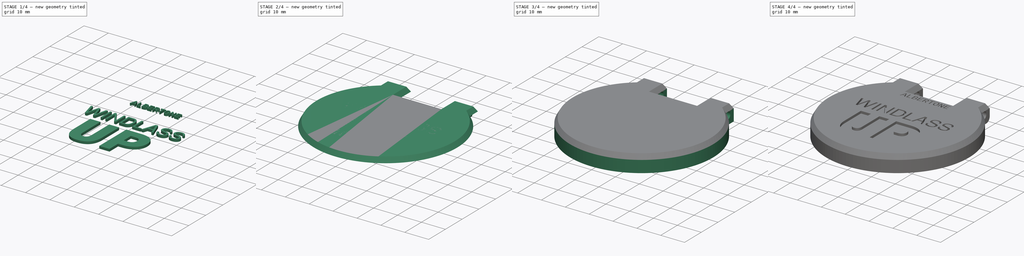
[diagram: build sequence overview — one tinted view per stage of 4, left to right]
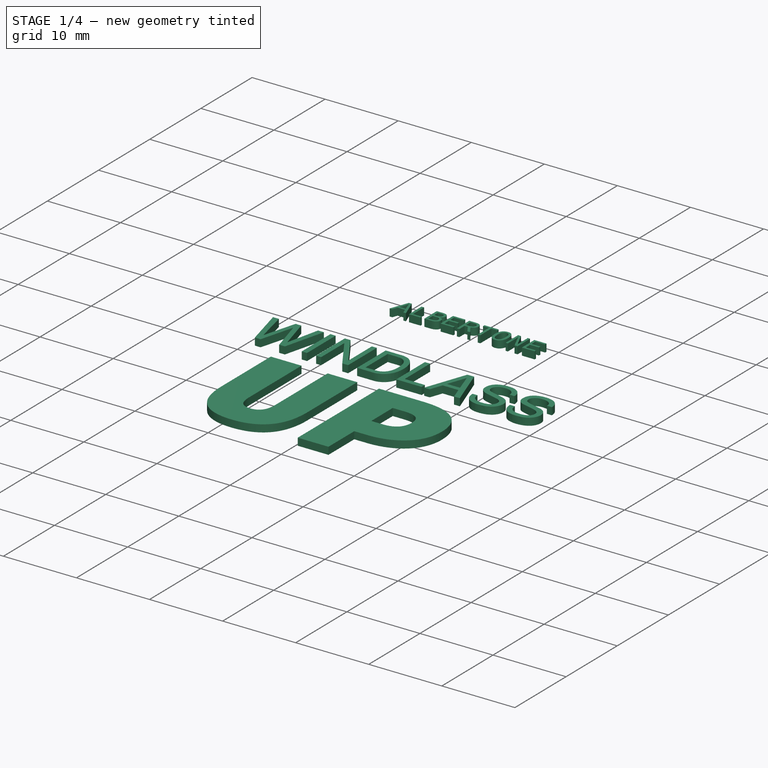
[diagram: stage 1 of 4 — iso view after this stage's code; geometry added in this stage tinted green]
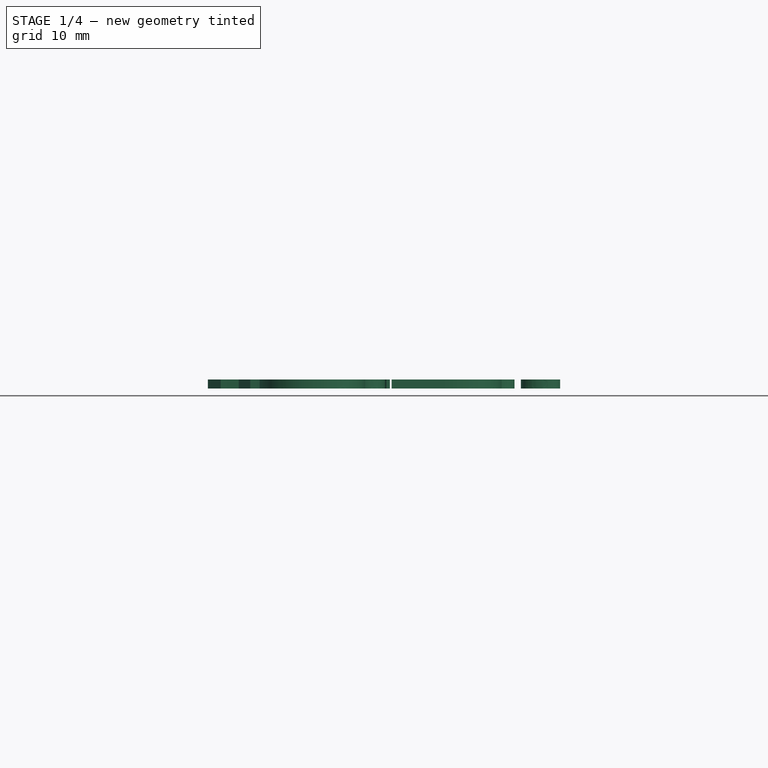
[diagram: stage 1 of 4 — front view after this stage's code; geometry added in this stage tinted green]
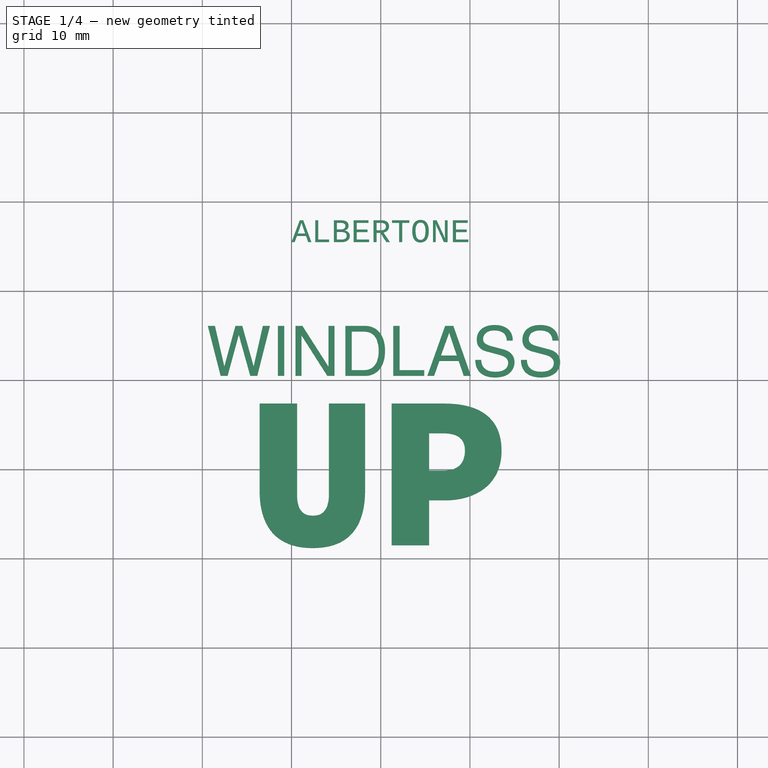
[diagram: stage 1 of 4 — top view after this stage's code; geometry added in this stage tinted green]
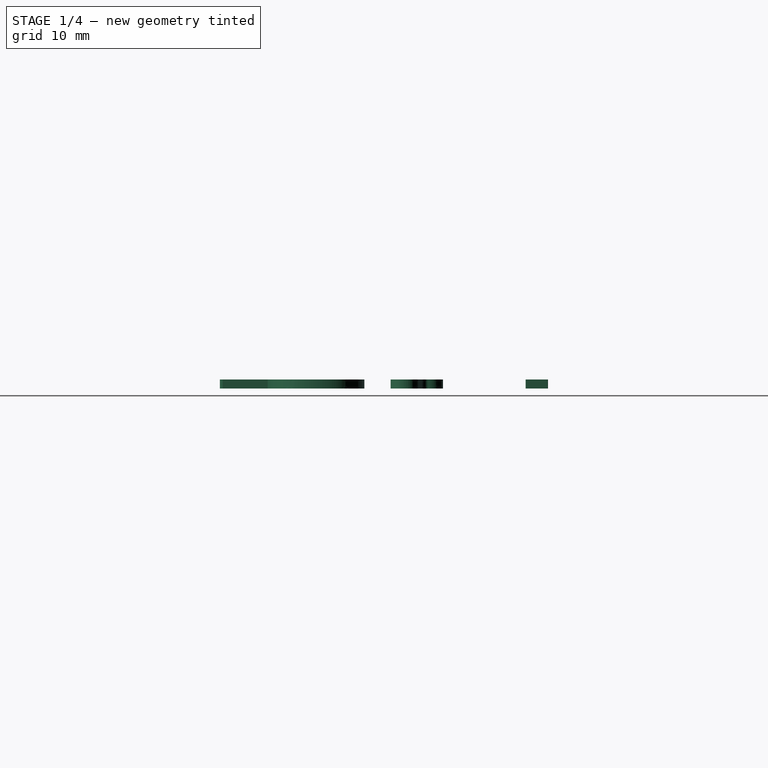
[diagram: stage 1 of 4 — right view after this stage's code; geometry added in this stage tinted green]
FCSTD DOCUMENT  (FreeCAD 0.21R33771 (Git))
Label: deck_switch_cover
License: All rights reserved
LicenseURL: https://en.wikipedia.org/wiki/All_rights_reserved
objects: Sketcher::SketchObject×5, Part::Part2DObjectPython×4, Part::Extrusion×4, PartDesign::Pad×2, PartDesign::Pocket×2, Image::ImagePlane×1, PartDesign::Fillet×1, PartDesign::Body×1, Part::MultiFuse×1, Part::Cut×1
note: 26 computed .brp shape members not serialized (recipe doc carries the construction recipe); baked Part::Feature solids carry a one-line shape summary decoded from their .brp

FEATURE [Part::Part2DObjectPython] ShapeString003  label="alertone"  # Draft 2D object (typed FeaturePython)
  FontFile = <path>
  MakeFace = true
  Placement = pos=(-10,15.5,2) rot=(0,0,1;0rad)
  Size = 2.8
  String = ALBERTONE
  Tracking = 0
FEATURE [Part::Extrusion] Extrude  label="Extrude_Windlass"
  Base = -> ShapeString
  Dir = (0,0,1)
  DirMode = 2
  FaceMakerClass = Part::FaceMakerBullseye
  LengthFwd = 1
  LengthRev = 0
  Reversed = true
  Solid = true
  Symmetric = false
FEATURE [Part::Extrusion] Extrude003  label="Extrude_UP"
  Base = -> ShapeString001
  Dir = (0,0,1)
  DirMode = 2
  FaceMakerClass = Part::FaceMakerBullseye
  LengthFwd = 1
  LengthRev = 0
  Reversed = true
  Solid = true
  Symmetric = false
FEATURE [Part::Extrusion] Extrude004  label="Extrude_Albertone"
  Base = -> ShapeString003
  Dir = (0,0,1)
  DirMode = 2
  FaceMakerClass = Part::FaceMakerBullseye
  LengthFwd = 1
  LengthRev = 0
  Reversed = true
  Solid = true
  Symmetric = false
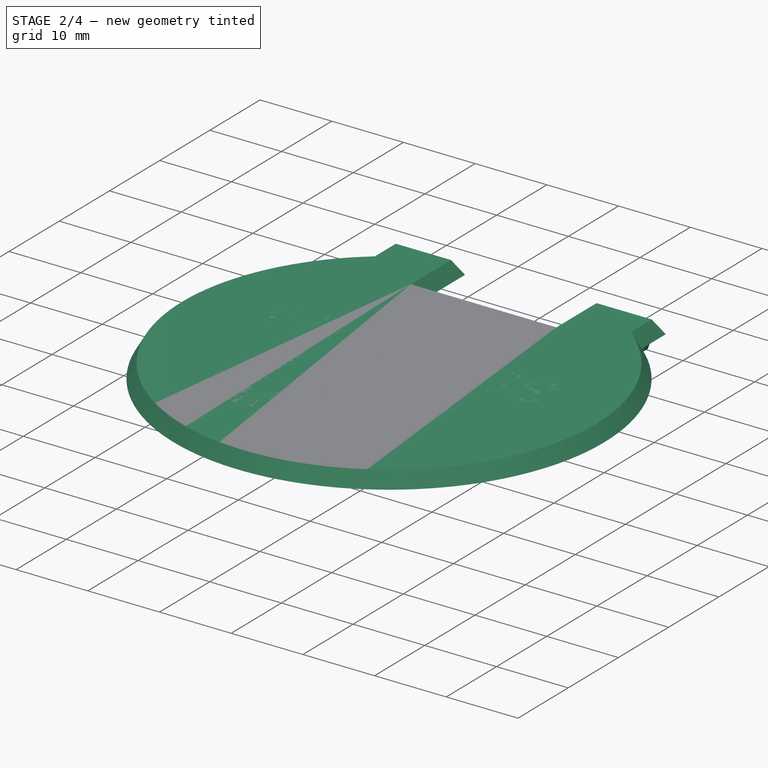
[diagram: stage 2 of 4 — iso view after this stage's code; geometry added in this stage tinted green]
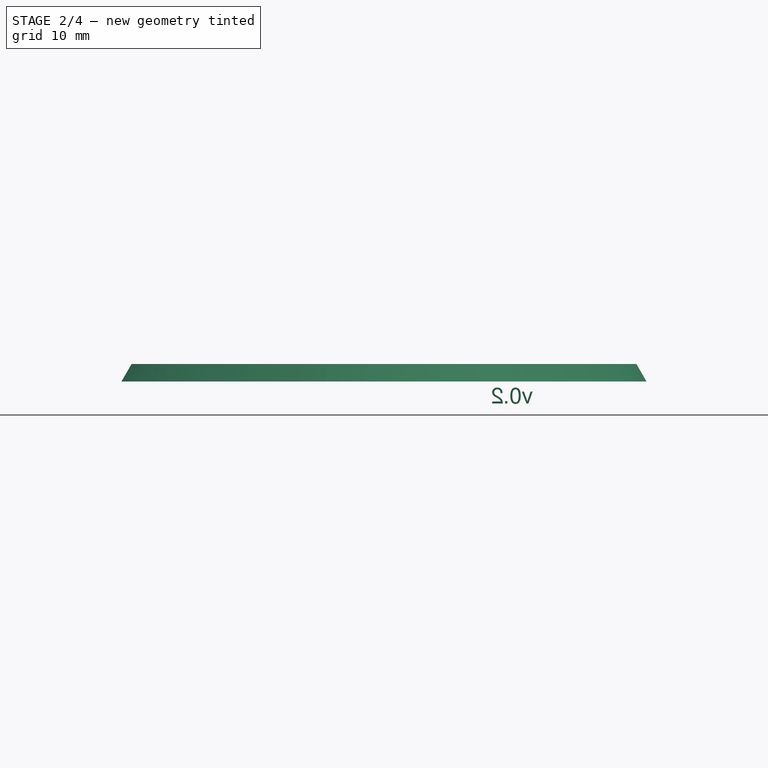
[diagram: stage 2 of 4 — front view after this stage's code; geometry added in this stage tinted green]
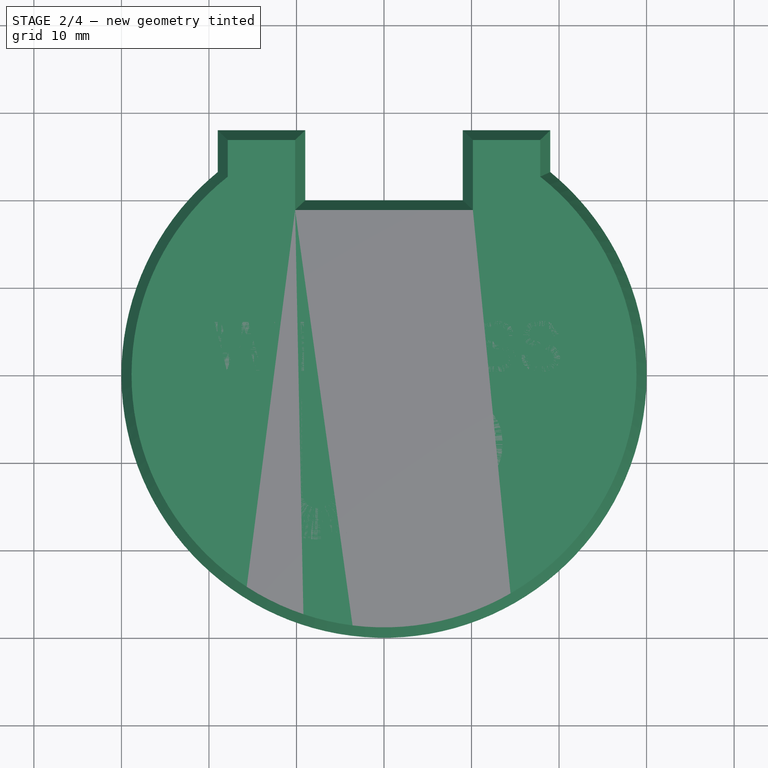
[diagram: stage 2 of 4 — top view after this stage's code; geometry added in this stage tinted green]
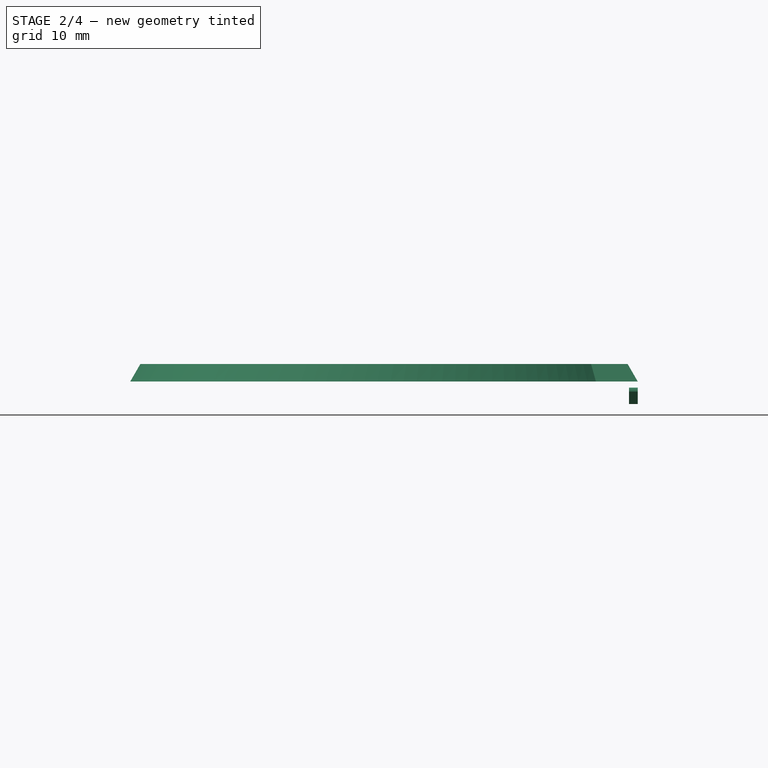
[diagram: stage 2 of 4 — right view after this stage's code; geometry added in this stage tinted green]
FEATURE [Image::ImagePlane] ref_picture
  Placement = pos=(-1,1,0) rot=(0,0,1;0rad)
  XSize = 133.429
  YSize = 178.272
FEATURE [Sketcher::SketchObject] Sketch003  label="Base"
  FullyConstrained = true
  MapMode = 5
  Support = -> [XY_Plane]
  sketch-geometry (16):
    g0: ArcOfCircle CenterX=0 CenterY=0 CenterZ=0 NormalX=0 NormalY=0 NormalZ=1 AngleXU=0 Radius=30 StartAngle=2.25665 EndAngle=7.16813
    g1: ArcOfCircle CenterX=0 CenterY=0 CenterZ=0 NormalX=0 NormalY=0 NormalZ=1 AngleXU=0 Radius=28 StartAngle=2.44337 EndAngle=6.98141
    g2: LineSegment StartX=-21.4476 StartY=18 StartZ=0 EndX=21.4476 EndY=18 EndZ=0
    g3: GeomPoint X=0 Y=-28 Z=0
    g4: GeomPoint X=0 Y=18 Z=0
    g5: LineSegment StartX=-19 StartY=23.2164 StartZ=0 EndX=-19 EndY=28 EndZ=0
    g6: LineSegment StartX=-19 StartY=28 StartZ=0 EndX=-9 EndY=28 EndZ=0
    g7: LineSegment StartX=-9 StartY=28 StartZ=0 EndX=-9 EndY=20 EndZ=0
    g8: LineSegment StartX=-9 StartY=20 StartZ=0 EndX=9 EndY=20 EndZ=0
    g9: LineSegment StartX=9 StartY=20 StartZ=0 EndX=9 EndY=28 EndZ=0
    g10: LineSegment StartX=9 StartY=28 StartZ=0 EndX=19 EndY=28 EndZ=0
    g11: LineSegment StartX=19 StartY=28 StartZ=0 EndX=19 EndY=23.2164 EndZ=0
    g12: GeomPoint X=-28 Y=0 Z=0
    g13: GeomPoint X=28 Y=0 Z=0
    g14: GeomPoint X=30 Y=0 Z=0
    g15: GeomPoint X=-30 Y=0 Z=0
  constraints (40):
    c: Coincident(g0,g-1)
    c: Diameter(g0) = 60
    c: Coincident(g1,g0)
    c: Diameter(g1) = 56
    c: Horizontal(g2)
    c: Coincident(g1,g2)
    c: Coincident(g1,g2)
    c: PointOnObject(g3,g1)
    c: PointOnObject(g3,g-2)
    c: PointOnObject(g4,g2)
    c: PointOnObject(g4,g-2)
    c: DistanceY(g3,g4) = 46
    c: Vertical(g5)
    c: Coincident(g5,g6)
    c: Horizontal(g6)
    c: Coincident(g6,g7)
    c: Vertical(g7)
    c: Coincident(g7,g8)
    c: Horizontal(g8)
    c: Coincident(g8,g9)
    c: Vertical(g9)
    c: Coincident(g9,g10)
    c: Horizontal(g10)
    c: Coincident(g10,g11)
    c: Vertical(g11)
    c: Coincident(g0,g5)
    c: Coincident(g0,g11)
    c: DistanceX(g8,g8) = 18
    c: Equal(g6,g10)
    c: Equal(g5,g11)
    c: Equal(g7,g9)
    c: DistanceX(g10,g10) = 10
    c: DistanceY(g9,g9) = 8
    c: DistanceY(g4,g7) = 2
    c: PointOnObject(g12,g1)
    c: PointOnObject(g12,g-1)
    c: PointOnObject(g15,g0)
    c: PointOnObject(g15,g-1)
    c: Symmetric(g12,g13,g0)
    c: Symmetric(g15,g14,g0)
FEATURE [Sketcher::SketchObject] Sketch004  label="Base001"
  FullyConstrained = false
  MapMode = 5
  Support = -> [XY_Plane]
  sketch-geometry (13):
    g0: ArcOfCircle CenterX=0 CenterY=0 CenterZ=0 NormalX=0 NormalY=0 NormalZ=1 AngleXU=0 Radius=30 StartAngle=2.25665 EndAngle=7.16813
    g1: GeomPoint X=0 Y=18 Z=0
    g2: LineSegment StartX=-19 StartY=23.2164 StartZ=0 EndX=-19 EndY=28 EndZ=0
    g3: LineSegment StartX=-19 StartY=28 StartZ=0 EndX=-9 EndY=28 EndZ=0
    g4: LineSegment StartX=-9 StartY=28 StartZ=0 EndX=-9 EndY=20 EndZ=0
    g5: LineSegment StartX=-9 StartY=20 StartZ=0 EndX=9 EndY=20 EndZ=0
    g6: LineSegment StartX=9 StartY=20 StartZ=0 EndX=9 EndY=28 EndZ=0
    g7: LineSegment StartX=9 StartY=28 StartZ=0 EndX=19 EndY=28 EndZ=0
    g8: LineSegment StartX=19 StartY=28 StartZ=0 EndX=19 EndY=23.2164 EndZ=0
    g9: GeomPoint X=28 Y=0 Z=0
    g10: GeomPoint X=30 Y=0 Z=0
    g11: GeomPoint X=-30 Y=0 Z=0
    g12: GeomPoint X=0 Y=-30 Z=0
  constraints (30):
    c: Coincident(g0,g-1)
    c: Diameter(g0) = 60  'durchmesser'
    c: PointOnObject(g1,g-2)
    c: Vertical(g2)
    c: Coincident(g2,g3)
    c: Horizontal(g3)
    c: Coincident(g3,g4)
    c: Vertical(g4)
    c: Coincident(g4,g5)
    c: Horizontal(g5)
    c: Coincident(g5,g6)
    c: Vertical(g6)
    c: Coincident(g6,g7)
    c: Horizontal(g7)
    c: Coincident(g7,g8)
    c: Vertical(g8)
    c: Coincident(g0,g2)
    c: Coincident(g0,g8)
    c: DistanceX(g5,g5) = 18
    c: Equal(g3,g7)
    c: Equal(g2,g8)
    c: Equal(g4,g6)
    c: DistanceX(g7,g7) = 10
    c: DistanceY(g6,g6) = 8
    c: PointOnObject(g11,g0)
    c: PointOnObject(g11,g-1)
    c: Symmetric(g11,g10,g0)
    c: PointOnObject(g12,g0)
    c: PointOnObject(g12,g-2)
    c: DistanceY(g12,g4) = 50
FEATURE [PartDesign::Pad] Pad001
  Direction = (0,0,1)
  Length = 2
  Length2 = 10
  Profile = -> Sketch004
  ReferenceAxis = -> Sketch004 [N_Axis]
  TaperAngle = -30
  Type = 0
FEATURE [PartDesign::Body] Body
  Group = -> [Sketch004,Pad001,Sketch003,Pad,Sketch,Pocket,Sketch005,Pocket001,Fillet]
  Origin = -> Origin
  Tip = -> Fillet
FEATURE [Part::Part2DObjectPython] ShapeString  label="windlass"  # Draft 2D object (typed FeaturePython)
  FontFile = <path>
  MakeFace = true
  Placement = pos=(-19.5,0.5,2) rot=(0,0,1;0rad)
  Size = 3
  String = WINDLASS
  Tracking = 0
FEATURE [Part::Part2DObjectPython] ShapeString001  label="up"  # Draft 2D object (typed FeaturePython)
  FontFile = <path>
  MakeFace = true
  Placement = pos=(-15,-18.5,2) rot=(0,0,1;0rad)
  Size = 10
  String = UP
  Tracking = 0
FEATURE [Part::Part2DObjectPython] ShapeString002  label="v02"  # Draft 2D object (typed FeaturePython)
  FontFile = <path>
  MakeFace = true
  Placement = pos=(17,28,-2.5) rot=(0,0.707107,0.707107;3.14159rad)
  Size = 1
  String = v0.2
  Tracking = 0
FEATURE [Part::Extrusion] Extrude002  label="Extrude_Version"
  Base = -> ShapeString002
  Dir = (0,1,-7e-16)
  DirMode = 2
  FaceMakerClass = Part::FaceMakerBullseye
  LengthFwd = 1
  LengthRev = 0
  Reversed = true
  Solid = true
  Symmetric = false
FEATURE [Part::MultiFuse] Fusion
  Shapes = -> [Extrude004,Extrude002,Extrude,Extrude003]
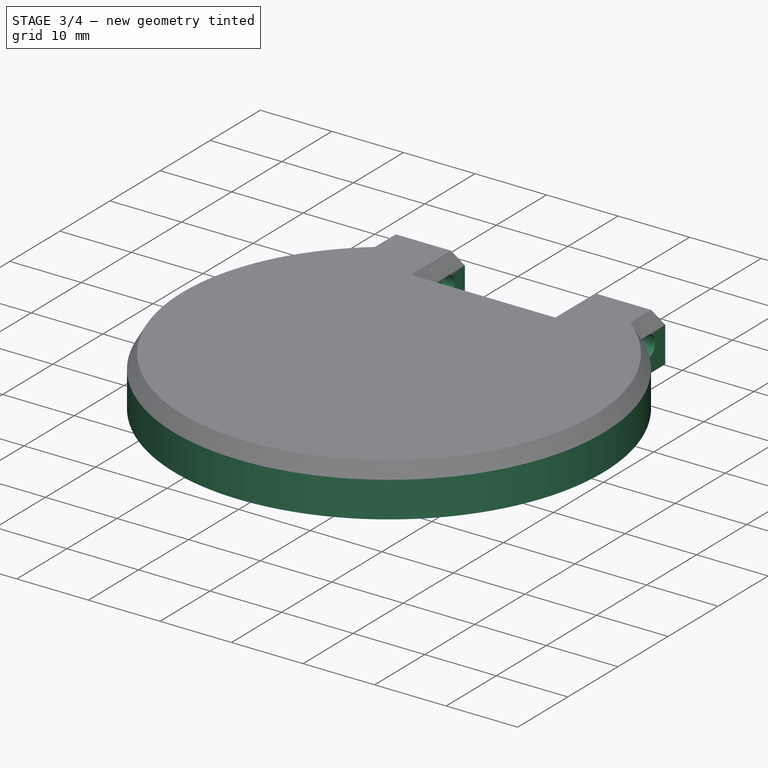
[diagram: stage 3 of 4 — iso view after this stage's code; geometry added in this stage tinted green]
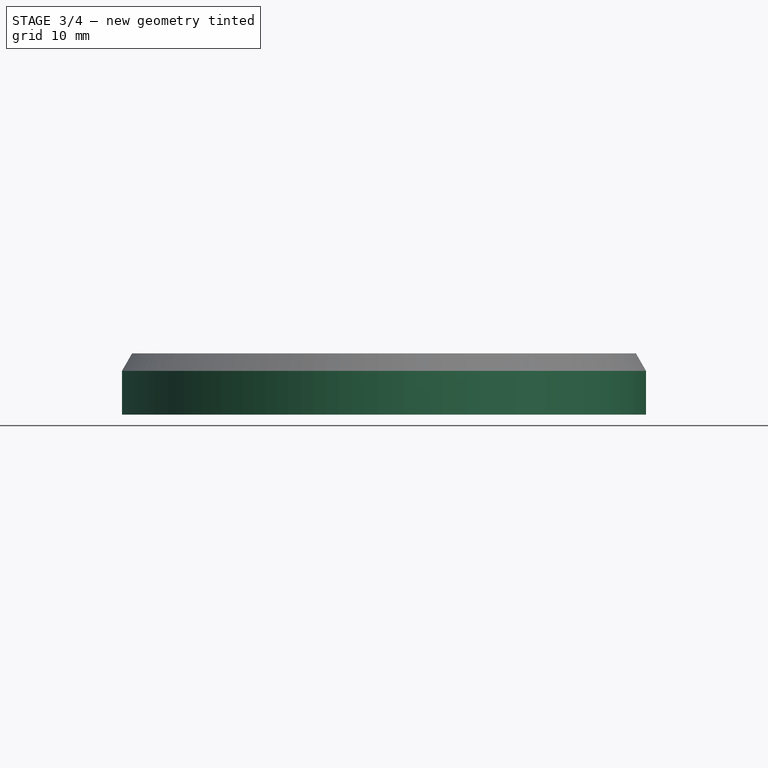
[diagram: stage 3 of 4 — front view after this stage's code; geometry added in this stage tinted green]
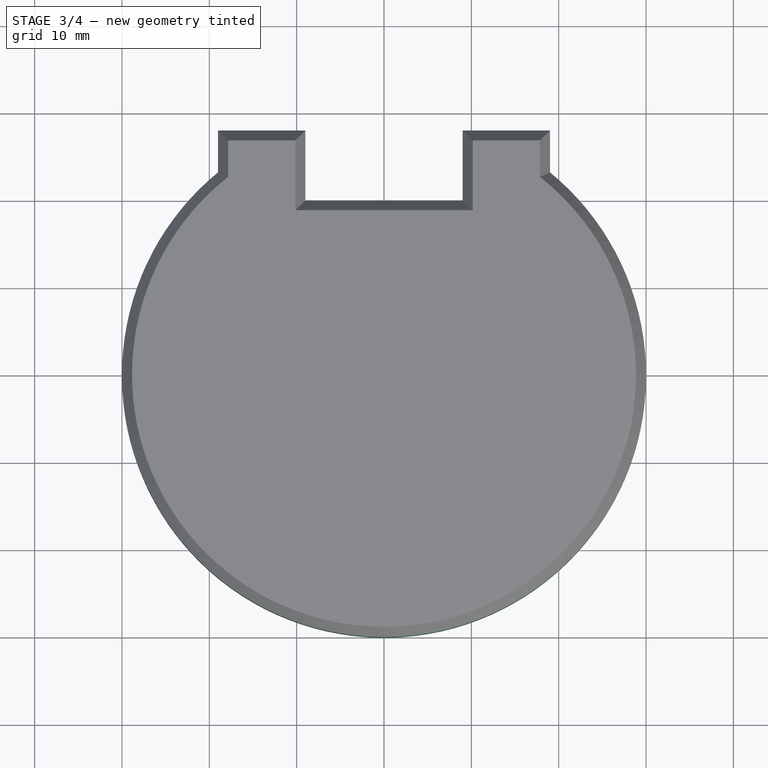
[diagram: stage 3 of 4 — top view after this stage's code; geometry added in this stage tinted green]
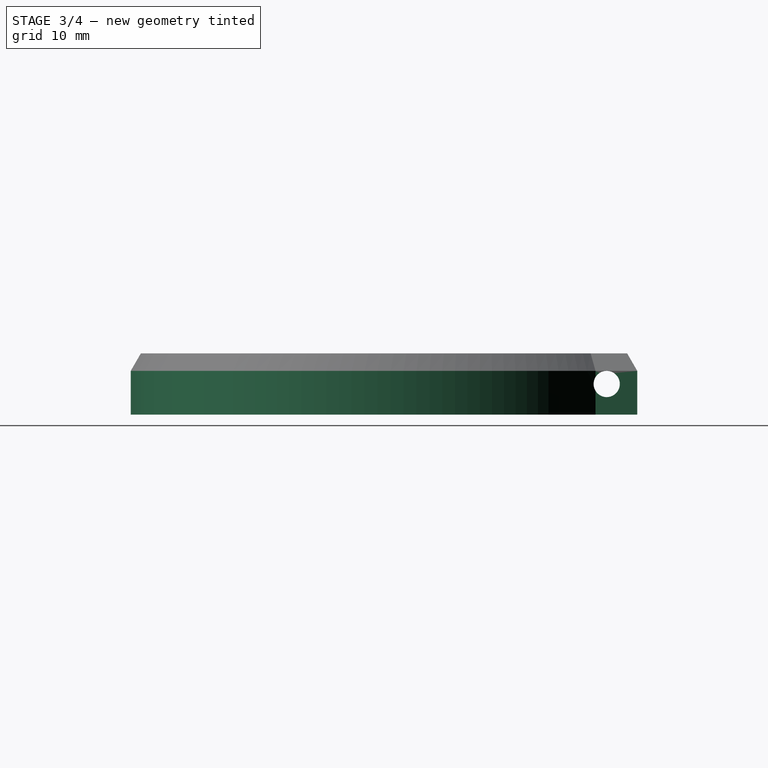
[diagram: stage 3 of 4 — right view after this stage's code; geometry added in this stage tinted green]
FEATURE [PartDesign::Pad] Pad
  BaseFeature = -> Pad001
  Direction = (0,0,1)
  Length = 5
  Length2 = 10
  Profile = -> Sketch003
  ReferenceAxis = -> Sketch003 [N_Axis]
  Reversed = true
  Type = 0
FEATURE [Sketcher::SketchObject] Sketch
  ExternalGeometry = -> [Pad]
  FullyConstrained = true
  MapMode = 5
  Placement = pos=(-19,0,0) rot=(0.57735,-0.57735,-0.57735;2.0944rad)
  Support = -> [Pad]
  sketch-geometry (1):
    g0: Circle CenterX=-24.5 CenterY=-1.5 CenterZ=0 NormalX=0 NormalY=0 NormalZ=1 AngleXU=0 Radius=1.5
  constraints (3):
    c: Diameter(g0) = 3
    c: DistanceY(g-4,g0) = 3.5
    c: DistanceX(g-4,g0) = 3.5
FEATURE [PartDesign::Pocket] Pocket
  BaseFeature = -> Pad
  Direction = (1,0,0)
  Length = 45
  Length2 = 5
  Midplane = true
  Profile = -> Sketch
  ReferenceAxis = -> Sketch [N_Axis]
  Type = 1
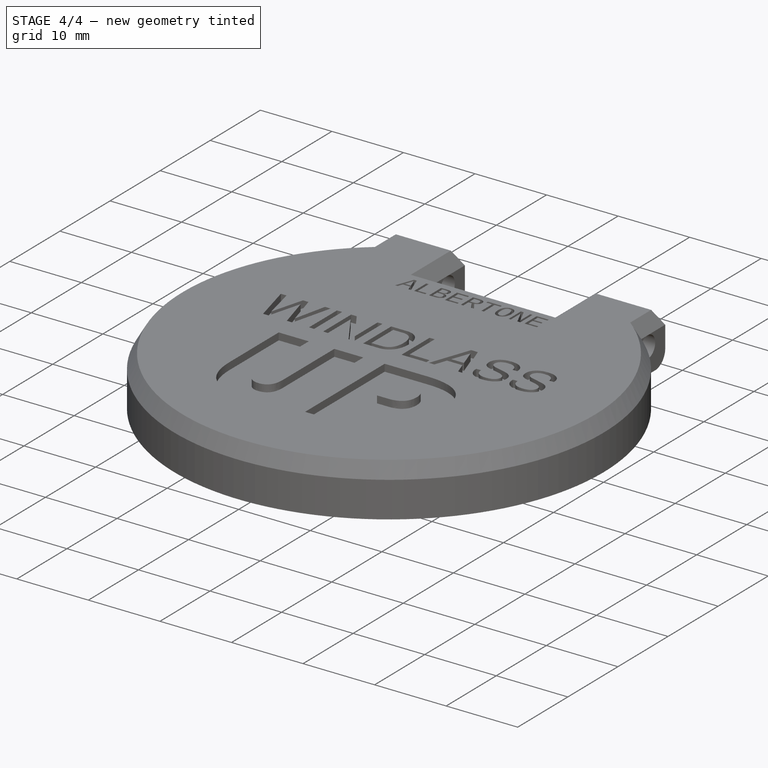
[diagram: stage 4 of 4 — iso view after this stage's code; geometry added in this stage tinted green]
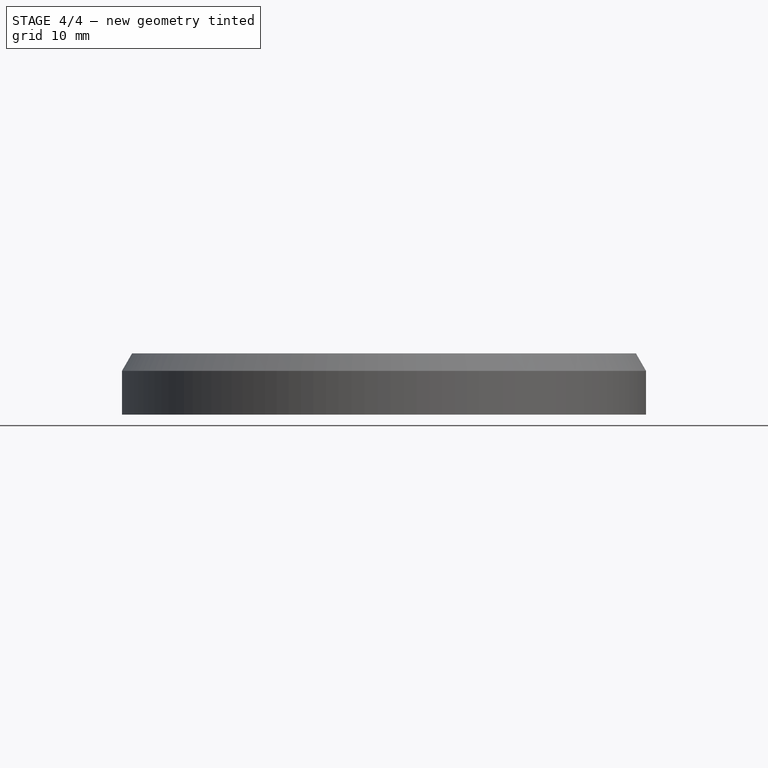
[diagram: stage 4 of 4 — front view after this stage's code; geometry added in this stage tinted green]
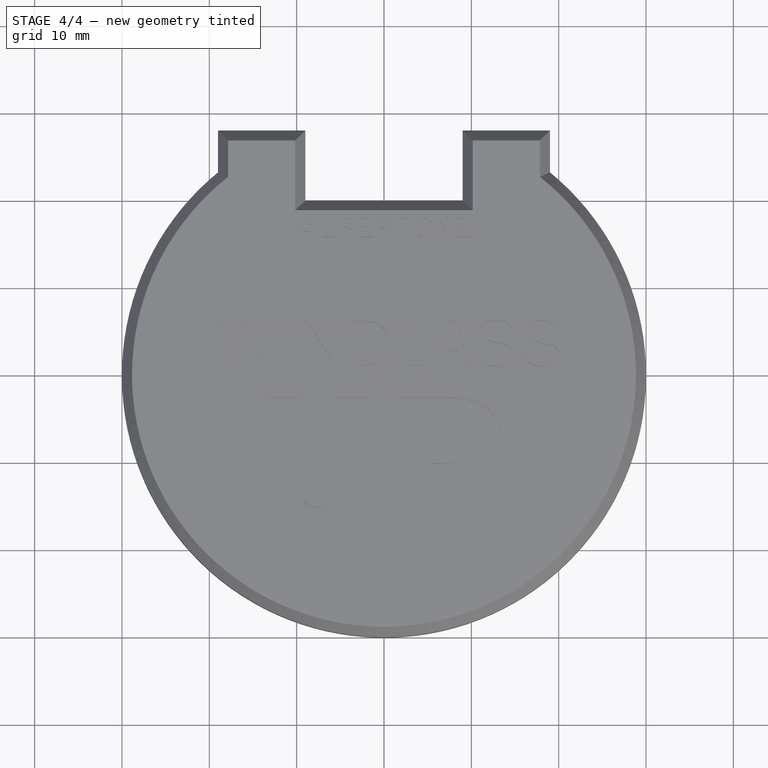
[diagram: stage 4 of 4 — top view after this stage's code; geometry added in this stage tinted green]
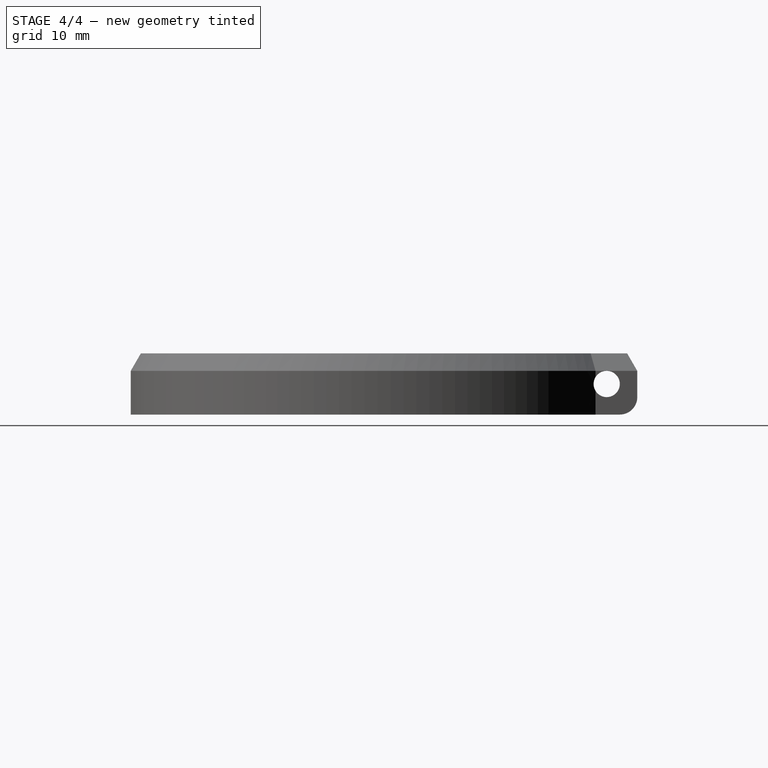
[diagram: stage 4 of 4 — right view after this stage's code; geometry added in this stage tinted green]
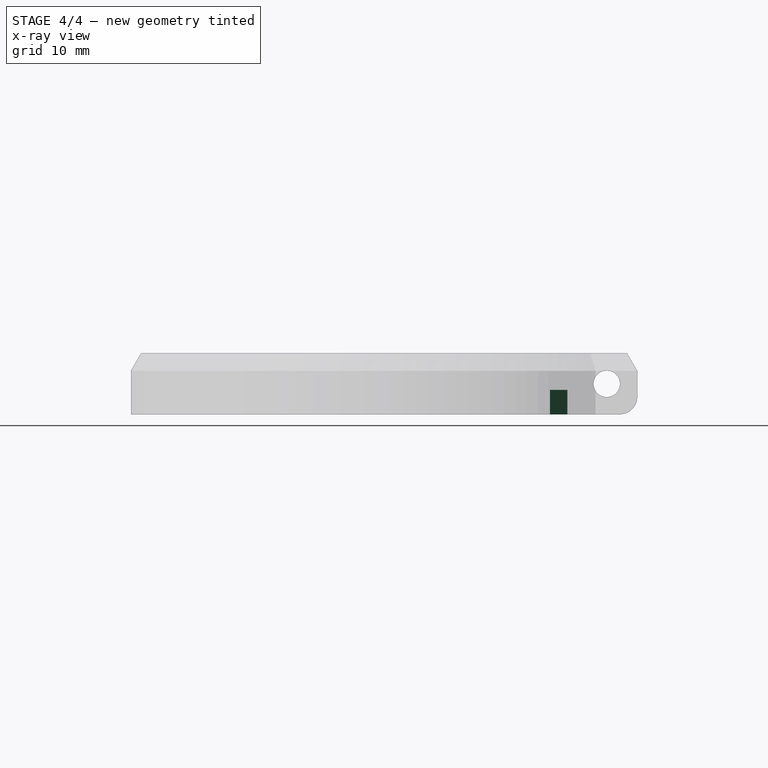
[diagram: stage 4 of 4 — x-ray composite at the right view; earlier geometry ghosted, this stage's added geometry solid]
FEATURE [Sketcher::SketchObject] Sketch005
  FullyConstrained = false
  MapMode = 5
  Placement = pos=(0,20,0) rot=(0,0.707107,0.707107;3.14159rad)
  sketch-geometry (4):
    g0: LineSegment StartX=-9 StartY=-5 StartZ=0 EndX=9 EndY=-5 EndZ=0
    g1: LineSegment StartX=9 StartY=-5 StartZ=0 EndX=9 EndY=-2.17212 EndZ=0
    g2: LineSegment StartX=9 StartY=-2.17212 StartZ=0 EndX=-9 EndY=-2.17212 EndZ=0
    g3: LineSegment StartX=-9 StartY=-2.17212 StartZ=0 EndX=-9 EndY=-5 EndZ=0
  constraints (8):
    c: Coincident(g0,g1)
    c: Coincident(g1,g2)
    c: Coincident(g2,g3)
    c: Coincident(g3,g0)
    c: Horizontal(g0)
    c: Horizontal(g2)
    c: Vertical(g1)
    c: Vertical(g3)
FEATURE [PartDesign::Pocket] Pocket001
  BaseFeature = -> Pocket
  Direction = (0,-1,2e-16)
  Length = 3
  Length2 = 5
  Profile = -> Sketch005
  ReferenceAxis = -> Sketch005 [N_Axis]
  Type = 2
FEATURE [PartDesign::Fillet] Fillet
  Base = -> Pocket001 [Edge49,Edge41]
  BaseFeature = -> Pocket001
  Radius = 2
  SupportTransform = false
  UseAllEdges = false
FEATURE [Sketcher::SketchObject] Sketch006
  FullyConstrained = false
  MapMode = 5
  Placement = pos=(0,0,2) rot=(0,0,1;0rad)
  sketch-geometry (6):
    g0: LineSegment StartX=-10.1547 StartY=18.8453 StartZ=0 EndX=-10.1547 EndY=-26.9988 EndZ=0
    g1: LineSegment StartX=-17.8453 StartY=22.6627 StartZ=0 EndX=-17.8453 EndY=-22.6627 EndZ=0
    g2: LineSegment StartX=10.1547 StartY=18.8453 StartZ=0 EndX=10.1547 EndY=-26.9988 EndZ=0
    g3: LineSegment StartX=17.8453 StartY=22.6627 StartZ=0 EndX=17.8453 EndY=-22.6627 EndZ=0
    g4: LineSegment StartX=28.8453 StartY=-0.039854 StartZ=0 EndX=-28.8453 EndY=-0.039854 EndZ=0
    g5: LineSegment StartX=0 StartY=18.7628 StartZ=0 EndX=0 EndY=-28.8453 EndZ=0
  constraints (7):
    c: Vertical(g1)
    c: Vertical(g3)
    c: Horizontal(g4)
    c: Vertical(g0)
    c: Vertical(g2)
    c: PointOnObject(g5,g-2)
    c: Vertical(g5)
FEATURE [Part::Cut] Cut
  Base = -> Body
  Tool = -> Fusion
note: 4 file-system paths scrubbed to <path> (originals preserved in the JSON sidecar)
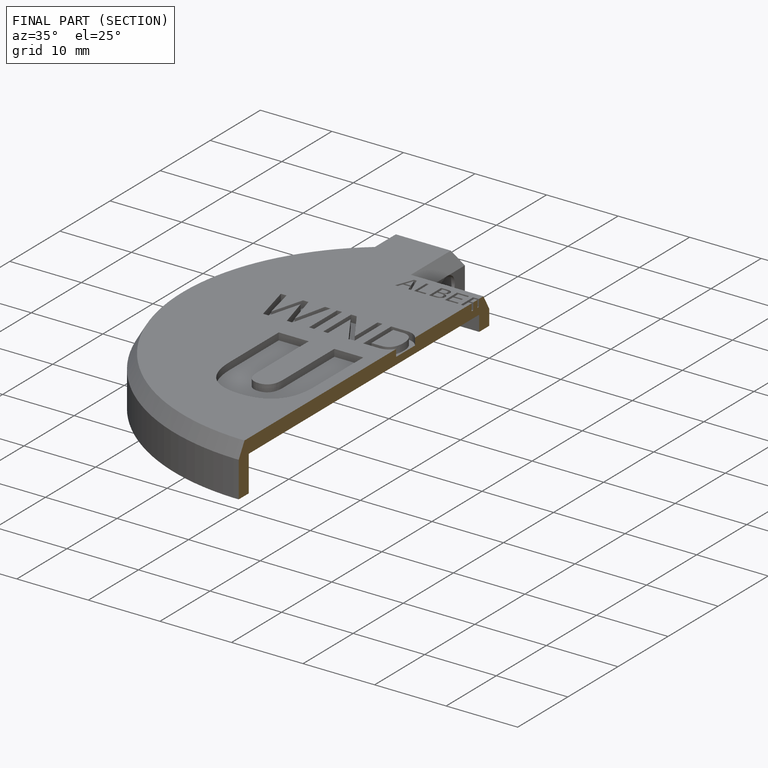
[diagram: finished part — half-section view (interior)]
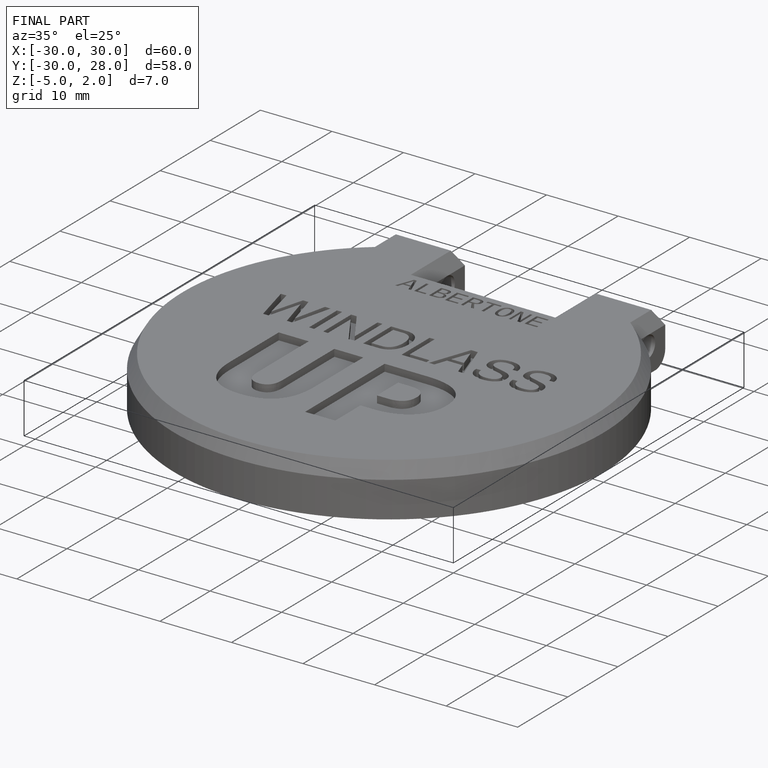
[diagram: finished part — iso view with bounding-box wireframe]
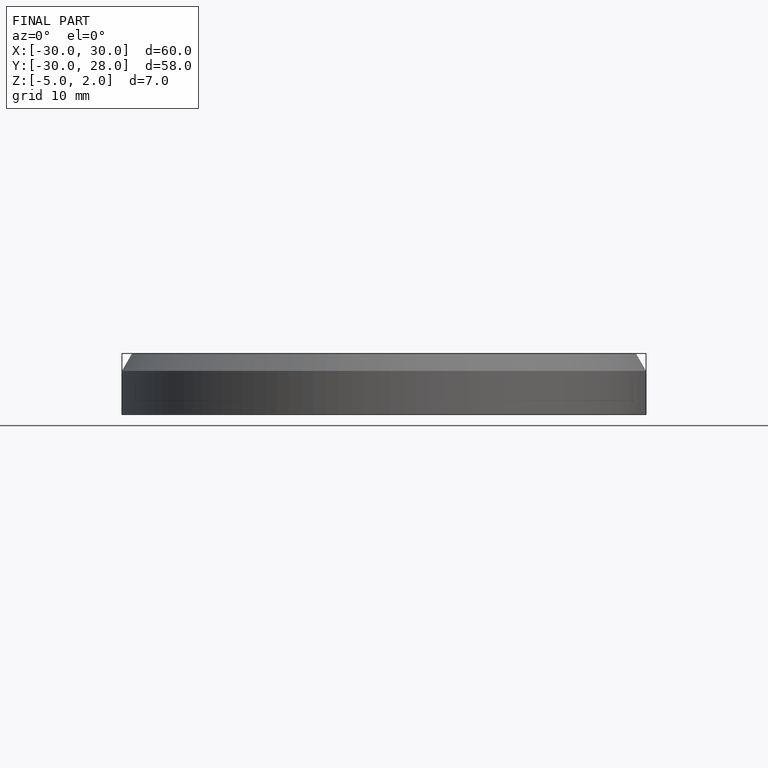
[diagram: finished part — front view with bounding-box wireframe]
